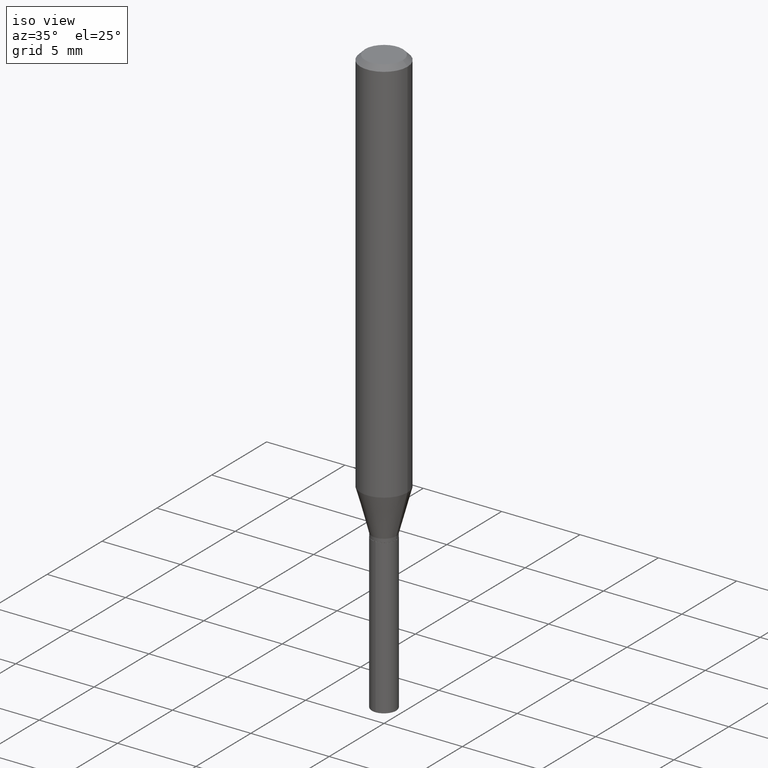
[diagram: clean part render]
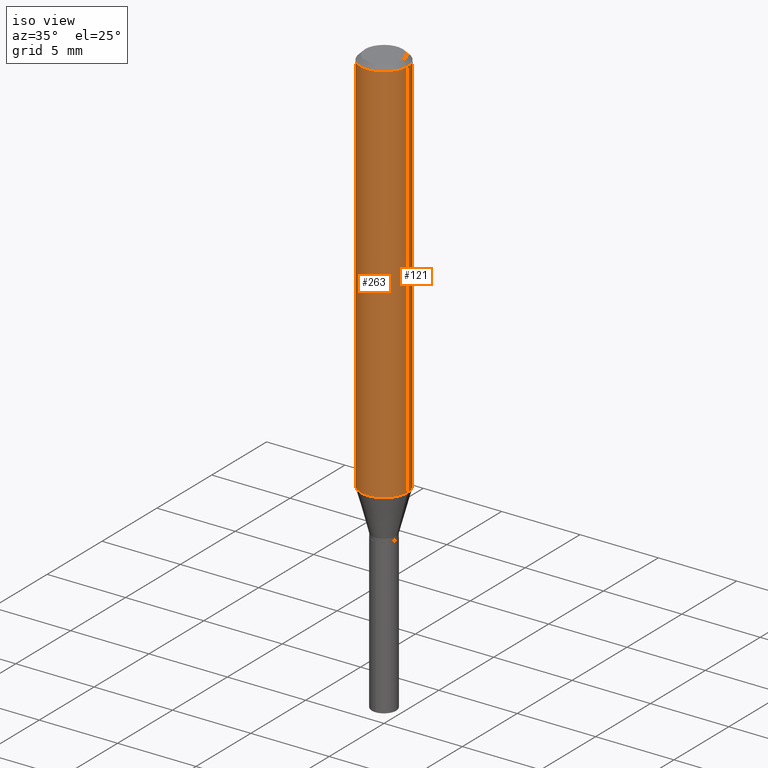
[diagram: same view with one multi-face feature highlighted, each face labeled with its STEP entity id]
A machine part, iso view. The highlighted faces form ONE feature: a constant-radius fillet chain: 2 tangent blend faces with common blend radius 1.4999 mm. The faces share edges in the B-rep.
Their STEP definitions:
[1] entity #263 (Cylinder):
#25 = CARTESIAN_POINT ( 'NONE',  ( -0.05905000000000006077, 4.195754854663395916E-16, -2.904631170795524694E-30 ) ) ;
#30 = EDGE_CURVE ( 'NONE', #196, #197, #373, .T. ) ;
#34 = DIRECTION ( 'NONE',  ( -2.445468806185136877E-29, 3.491481338843145188E-15, 1.000000000000000000 ) ) ;
#63 = LINE ( 'NONE', #238, #148 ) ;
#64 = FACE_OUTER_BOUND ( 'NONE', #203, .T. ) ;
#66 = DIRECTION ( 'NONE',  ( -2.445468806185136597E-29, 3.491481338843145583E-15, 1.000000000000000000 ) ) ;
#76 = CARTESIAN_POINT ( 'NONE',  ( -0.05905000000000011628, -2.997711698410737591E-15, -0.9787499494439081404 ) ) ;
#77 = AXIS2_PLACEMENT_3D ( 'NONE', #486, #66, #447 ) ;
#104 = CARTESIAN_POINT ( 'NONE',  ( 2.393502470420357058E-29, -3.417287183877077478E-15, -0.9787499494439081404 ) ) ;
#120 = ORIENTED_EDGE ( 'NONE', *, *, #289, .F. ) ;
#148 = VECTOR ( 'NONE', #478, 39.37007874015748143 ) ;
#155 = AXIS2_PLACEMENT_3D ( 'NONE', #104, #252, #370 ) ;
#160 = AXIS2_PLACEMENT_3D ( 'NONE', #225, #351, #377 ) ;
#170 = CYLINDRICAL_SURFACE ( 'NONE', #77, 0.05905000000000006077 ) ;
#196 = VERTEX_POINT ( 'NONE', #365 ) ;
#197 = VERTEX_POINT ( 'NONE', #219 ) ;
#203 = EDGE_LOOP ( 'NONE', ( #120, #409, #472, #268 ) ) ;
#219 = CARTESIAN_POINT ( 'NONE',  ( 0.05904999999999999832, -4.535783407291118600E-16, -0.01181000000000007565 ) ) ;
#225 = CARTESIAN_POINT ( 'NONE',  ( 2.888098660104664642E-31, -4.123439461173780879E-17, -0.01181000000000007565 ) ) ;
#238 = CARTESIAN_POINT ( 'NONE',  ( 0.05905000000000006077, -4.123439461173744764E-16, 2.879382386107503023E-30 ) ) ;
#252 = DIRECTION ( 'NONE',  ( -2.445468806185136597E-29, 3.491481338843145583E-15, 1.000000000000000000 ) ) ;
#263 = ADVANCED_FACE ( 'NONE', ( #64 ), #170, .T. ) ;
#268 = ORIENTED_EDGE ( 'NONE', *, *, #30, .F. ) ;
#289 = EDGE_CURVE ( 'NONE', #382, #196, #356, .T. ) ;
#330 = CARTESIAN_POINT ( 'NONE',  ( 0.05905000000000011628, -3.829631129994452398E-15, -0.9787499494439081404 ) ) ;
#346 = EDGE_CURVE ( 'NONE', #384, #197, #63, .T. ) ;
#351 = DIRECTION ( 'NONE',  ( -2.445468806185136597E-29, 3.491481338843145583E-15, 1.000000000000000000 ) ) ;
#356 = LINE ( 'NONE', #25, #386 ) ;
#365 = CARTESIAN_POINT ( 'NONE',  ( -0.05904999999999999832, -1.309685303778067124E-15, -0.01181000000000007565 ) ) ;
#370 = DIRECTION ( 'NONE',  ( 1.000000000000000000, -6.982962677686266711E-15, 0.000000000000000000 ) ) ;
#373 = CIRCLE ( 'NONE', #160, 0.05904999999999999832 ) ;
#377 = DIRECTION ( 'NONE',  ( 1.000000000000000000, -6.982962677686266711E-15, 0.000000000000000000 ) ) ;
#382 = VERTEX_POINT ( 'NONE', #76 ) ;
#384 = VERTEX_POINT ( 'NONE', #330 ) ;
#386 = VECTOR ( 'NONE', #34, 39.37007874015748143 ) ;
#409 = ORIENTED_EDGE ( 'NONE', *, *, #449, .T. ) ;
#447 = DIRECTION ( 'NONE',  ( 1.000000000000000000, -6.982962677686266711E-15, 4.876176775795935793E-29 ) ) ;
#449 = EDGE_CURVE ( 'NONE', #382, #384, #451, .T. ) ;
#451 = CIRCLE ( 'NONE', #155, 0.05905000000000011628 ) ;
#472 = ORIENTED_EDGE ( 'NONE', *, *, #346, .T. ) ;
#478 = DIRECTION ( 'NONE',  ( -2.445468806185136877E-29, 3.491481338843145188E-15, 1.000000000000000000 ) ) ;
#486 = CARTESIAN_POINT ( 'NONE',  ( 0.000000000000000000, 0.000000000000000000, 0.000000000000000000 ) ) ;
[2] entity #121 (Cylinder):
#25 = CARTESIAN_POINT ( 'NONE',  ( -0.05905000000000006077, 4.195754854663395916E-16, -2.904631170795524694E-30 ) ) ;
#26 = DIRECTION ( 'NONE',  ( -2.445468806185136597E-29, 3.491481338843145583E-15, 1.000000000000000000 ) ) ;
#34 = DIRECTION ( 'NONE',  ( -2.445468806185136877E-29, 3.491481338843145188E-15, 1.000000000000000000 ) ) ;
#57 = ORIENTED_EDGE ( 'NONE', *, *, #346, .F. ) ;
#63 = LINE ( 'NONE', #238, #148 ) ;
#76 = CARTESIAN_POINT ( 'NONE',  ( -0.05905000000000011628, -2.997711698410737591E-15, -0.9787499494439081404 ) ) ;
#95 = CYLINDRICAL_SURFACE ( 'NONE', #169, 0.05905000000000006077 ) ;
#121 = ADVANCED_FACE ( 'NONE', ( #235 ), #95, .T. ) ;
#133 = CARTESIAN_POINT ( 'NONE',  ( 0.000000000000000000, 0.000000000000000000, 0.000000000000000000 ) ) ;
#136 = DIRECTION ( 'NONE',  ( 1.000000000000000000, -6.982962677686266711E-15, 0.000000000000000000 ) ) ;
#148 = VECTOR ( 'NONE', #478, 39.37007874015748143 ) ;
#169 = AXIS2_PLACEMENT_3D ( 'NONE', #133, #26, #357 ) ;
#174 = DIRECTION ( 'NONE',  ( -2.445468806185136597E-29, 3.491481338843145583E-15, 1.000000000000000000 ) ) ;
#177 = ORIENTED_EDGE ( 'NONE', *, *, #292, .F. ) ;
#192 = ORIENTED_EDGE ( 'NONE', *, *, #369, .T. ) ;
#196 = VERTEX_POINT ( 'NONE', #365 ) ;
#197 = VERTEX_POINT ( 'NONE', #219 ) ;
#199 = AXIS2_PLACEMENT_3D ( 'NONE', #245, #174, #281 ) ;
#219 = CARTESIAN_POINT ( 'NONE',  ( 0.05904999999999999832, -4.535783407291118600E-16, -0.01181000000000007565 ) ) ;
#235 = FACE_OUTER_BOUND ( 'NONE', #431, .T. ) ;
#238 = CARTESIAN_POINT ( 'NONE',  ( 0.05905000000000006077, -4.123439461173744764E-16, 2.879382386107503023E-30 ) ) ;
#242 = CIRCLE ( 'NONE', #199, 0.05904999999999999832 ) ;
#245 = CARTESIAN_POINT ( 'NONE',  ( 2.888098660104664642E-31, -4.123439461173780879E-17, -0.01181000000000007565 ) ) ;
#281 = DIRECTION ( 'NONE',  ( 1.000000000000000000, -6.982962677686266711E-15, 0.000000000000000000 ) ) ;
#289 = EDGE_CURVE ( 'NONE', #382, #196, #356, .T. ) ;
#292 = EDGE_CURVE ( 'NONE', #197, #196, #242, .T. ) ;
#294 = ORIENTED_EDGE ( 'NONE', *, *, #289, .T. ) ;
#296 = CIRCLE ( 'NONE', #342, 0.05905000000000011628 ) ;
#318 = CARTESIAN_POINT ( 'NONE',  ( 2.393502470420357058E-29, -3.417287183877077478E-15, -0.9787499494439081404 ) ) ;
#330 = CARTESIAN_POINT ( 'NONE',  ( 0.05905000000000011628, -3.829631129994452398E-15, -0.9787499494439081404 ) ) ;
#342 = AXIS2_PLACEMENT_3D ( 'NONE', #318, #482, #136 ) ;
#346 = EDGE_CURVE ( 'NONE', #384, #197, #63, .T. ) ;
#356 = LINE ( 'NONE', #25, #386 ) ;
#357 = DIRECTION ( 'NONE',  ( 1.000000000000000000, -6.982962677686266711E-15, 4.876176775795935793E-29 ) ) ;
#365 = CARTESIAN_POINT ( 'NONE',  ( -0.05904999999999999832, -1.309685303778067124E-15, -0.01181000000000007565 ) ) ;
#369 = EDGE_CURVE ( 'NONE', #384, #382, #296, .T. ) ;
#382 = VERTEX_POINT ( 'NONE', #76 ) ;
#384 = VERTEX_POINT ( 'NONE', #330 ) ;
#386 = VECTOR ( 'NONE', #34, 39.37007874015748143 ) ;
#431 = EDGE_LOOP ( 'NONE', ( #192, #294, #177, #57 ) ) ;
#478 = DIRECTION ( 'NONE',  ( -2.445468806185136877E-29, 3.491481338843145188E-15, 1.000000000000000000 ) ) ;
#482 = DIRECTION ( 'NONE',  ( -2.445468806185136597E-29, 3.491481338843145583E-15, 1.000000000000000000 ) ) ;